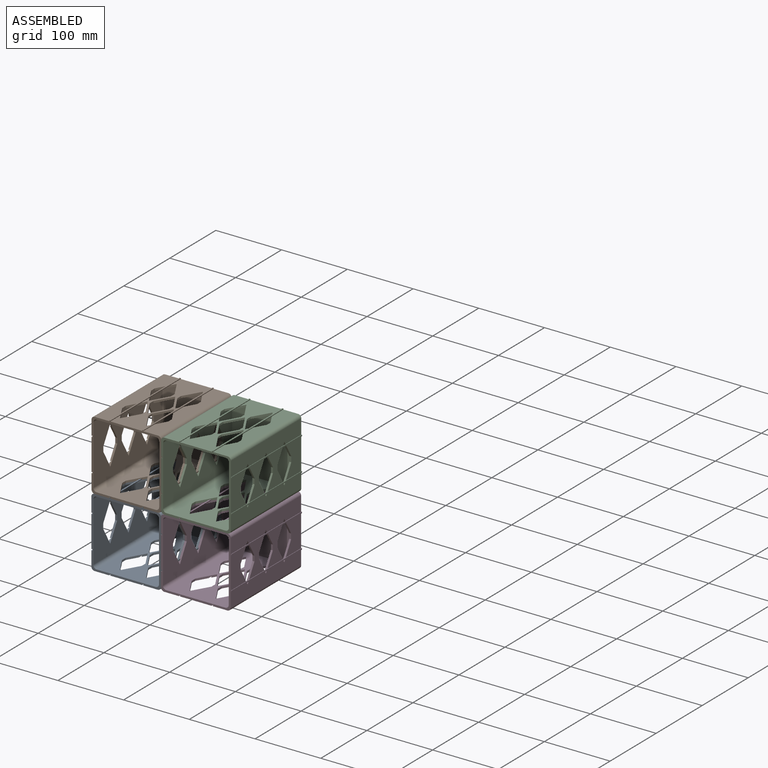
[diagram: assembled view]
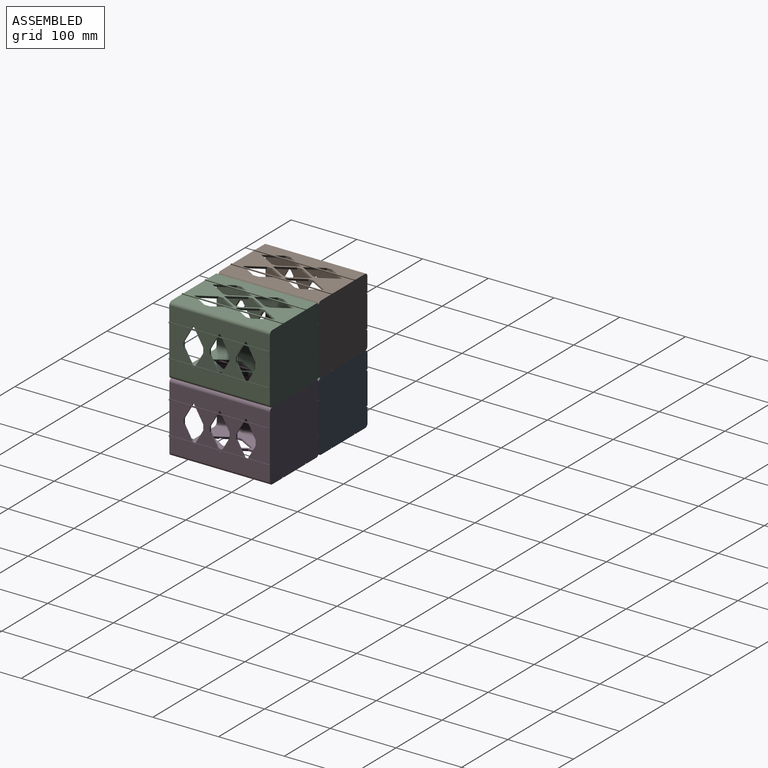
[diagram: assembled view, second angle]
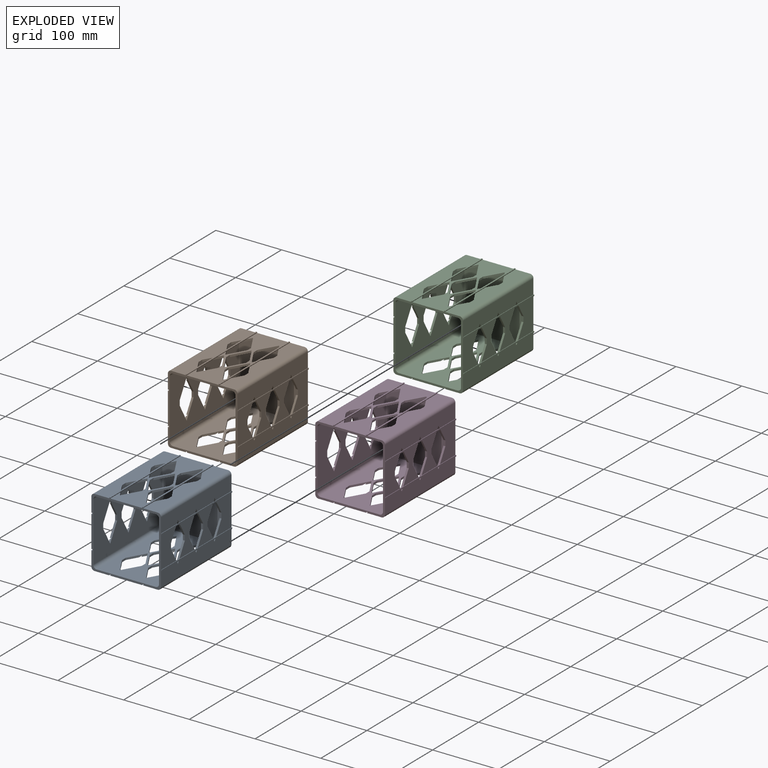
[diagram: exploded view]
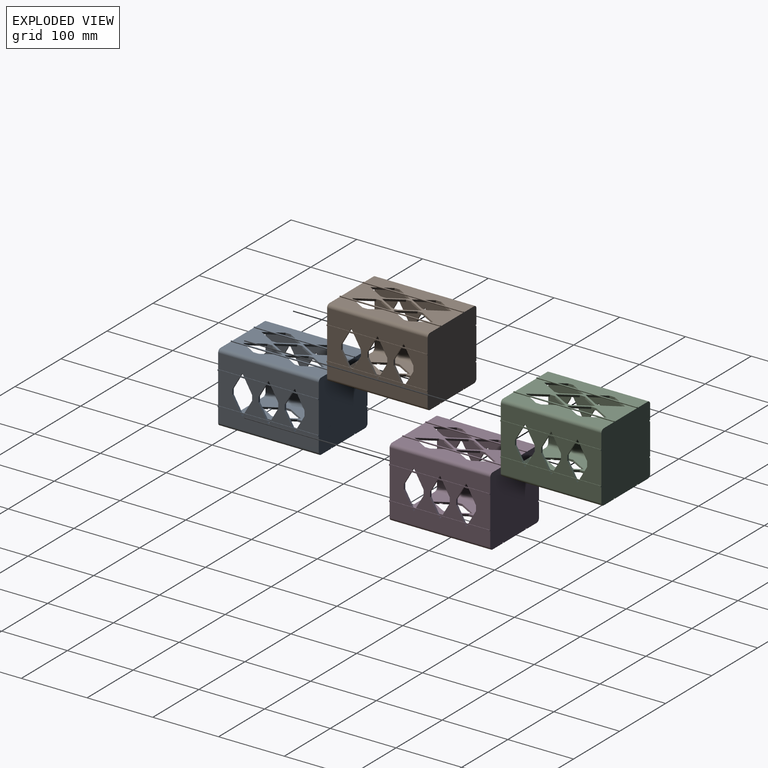
[diagram: exploded view, second angle]
ASSEMBLY  parts=4 mates=3
PART A: 193 faces, bbox 107.3x153x107.3 mm
  f0: plane 48.84x33.44mm, normal (1,0,0), area 1298.4mm2, adj f7,f102,f103,f104,f184,f191
  f1: plane 48.84x33.4mm, normal (1,0,0), area 961.1mm2, adj f96,f97,f98,f99,f100,f101,f184,f191
  f2: plane 48.84x33.4mm, normal (1,0,0), area 961.1mm2, adj f93,f94,f95,f105,f106,f110,f184,f191
  f3: plane 48.84x33.44mm, normal (1,0,0), area 1298.4mm2, adj f8,f107,f108,f109,f184,f191
  f4: plane 153x22.42mm, normal (1,0,0), area 3396.7mm2, adj f7,f8,f95,f96,f101,f102,f109,f110
  f5: plane 153x22.42mm, normal (0,0,1), area 2978.1mm2, adj f7,f8,f39,f40,f41,f56,f57,f58
  f6: plane 153x48.84mm, normal (0,0,1), area 3471.1mm2, adj f7,f8,f30,f31,f32,f33,f34,f35
  f7: plane 107.3x107.3mm, normal (0,-1,0), area 1231.8mm2, adj f0,f4,f5,f6,f9,f10,f15,f16
  f8: plane 107.3x107.3mm, normal (0,1,0), area 11210.4mm2, adj f3,f4,f5,f6,f9,f10,f15,f19
  f9: plane 153x48.42mm, normal (0,0,-1), area 3444.4mm2, adj f7,f8,f11,f12,f13,f14,f65,f66
  f10: plane 153x22.21mm, normal (0,0,-1), area 2962.8mm2, adj f7,f8,f11,f12,f13,f14,f74,f89
  f11: plane 25.98x15mm, normal (-0.87,0.5,0), area 83.8mm2, adj f9,f10,f62,f73,f74,f153,f154,f155
  f12: plane 25.98x15mm, normal (-0.87,-0.5,0), area 83.8mm2, adj f9,f10,f62,f71,f74,f168,f169,f170
  f13: plane 25.98x15mm, normal (-0.87,0.5,0), area 83.8mm2, adj f9,f10,f62,f88,f89,f156,f157,f158
  f14: plane 25.98x15mm, normal (-0.87,-0.5,0), area 83.8mm2, adj f9,f10,f62,f89,f90,f153,f154,f155
  f15: plane 153x22.21mm, normal (-1,0,0), area 3367.6mm2, adj f7,f8,f113,f116,f117,f120,f122,f123
  f16: plane 48.42x33.32mm, normal (-1,0,0), area 1284.4mm2, adj f7,f23,f119,f120,f143,f144
  f17: plane 48.42x33.15mm, normal (-1,0,0), area 947.1mm2, adj f21,f22,f115,f116,f117,f118,f148,f150
  f18: plane 48.42x33.15mm, normal (-1,0,0), area 947.1mm2, adj f20,f25,f113,f114,f121,f122,f129,f140
  f19: plane 48.42x33.32mm, normal (-1,0,0), area 1284.4mm2, adj f8,f24,f123,f124,f133,f137
  f20: plane 25.98x15mm, normal (0,-0.87,0.5), area 86.4mm2, adj f18,f21,f111,f112,f114,f129,f130,f131
  f21: plane 25.98x15mm, normal (0,0.87,0.5), area 86.4mm2, adj f17,f20,f111,f112,f115,f147,f148,f149
  f22: plane 25.98x15mm, normal (0,-0.87,0.5), area 86.4mm2, adj f17,f23,f111,f112,f118,f147,f148,f149
  f23: plane 25.98x15mm, normal (0,0.87,0.5), area 86.4mm2, adj f16,f22,f111,f112,f119,f144,f145,f146
  f24: plane 25.98x15mm, normal (0,-0.87,0.5), area 86.4mm2, adj f19,f25,f111,f112,f124,f132,f133,f134
  f25: plane 25.98x15mm, normal (0,0.87,0.5), area 86.4mm2, adj f18,f24,f111,f112,f121,f129,f130,f131
  f26: plane 153x22.42mm, normal (0,0,1), area 2978.1mm2, adj f7,f8,f44,f45,f46,f51,f52,f53
  f27: plane 150x90mm, normal (0,0,-1), area 8397.1mm2, adj f7,f28,f29,f30,f31,f32,f33,f34
  f28: cylinder r=5mm len=150mm, axis (0,1,0), area 1178.1mm2, adj f7,f27,f60,f112
  f29: cylinder r=5mm len=150mm, axis (0,1,0), area 1178.1mm2, adj f7,f27,f60,f92
  f30: plane 25.98x15mm, normal (0.87,-0.5,0), area 90mm2, adj f6,f27,f31,f35
  f31: plane 8.04x3mm, normal (1,0,0), area 24.1mm2, adj f6,f27,f30,f32
  f32: plane 25.98x15mm, normal (0.87,0.5,0), area 90mm2, adj f6,f27,f31,f33
  f33: plane 25.98x15mm, normal (-0.87,0.5,0), area 90mm2, adj f6,f27,f32,f34
  f34: plane 8.04x3mm, normal (-1,0,0), area 24.1mm2, adj f6,f27,f33,f35
  f35: plane 25.98x15mm, normal (-0.87,-0.5,0), area 90mm2, adj f6,f27,f30,f34
  f36: plane 25.98x15mm, normal (0.87,-0.5,0), area 90mm2, adj f6,f27,f37,f41
  f37: plane 8.04x3mm, normal (1,0,0), area 24.1mm2, adj f6,f27,f36,f38
  f38: plane 25.98x15mm, normal (0.87,0.5,0), area 90mm2, adj f6,f27,f37,f39
  f39: plane 25.98x15mm, normal (-0.87,0.5,0), area 90mm2, adj f5,f6,f27,f38,f40,f177
  f40: plane 8.04x3mm, normal (-1,0,0), area 24.1mm2, adj f5,f27,f39,f41
  f41: plane 25.98x15mm, normal (-0.87,-0.5,0), area 90mm2, adj f5,f6,f27,f36,f40,f177
  f42: plane 8.04x3mm, normal (-1,0,0), area 24.1mm2, adj f6,f27,f43,f47
  f43: plane 25.98x15mm, normal (-0.87,-0.5,0), area 90mm2, adj f6,f27,f42,f44
  f44: plane 25.98x15mm, normal (0.87,-0.5,0), area 90mm2, adj f6,f26,f27,f43,f45,f174
  f45: plane 8.04x3mm, normal (1,0,0), area 24.1mm2, adj f26,f27,f44,f46
  f46: plane 25.98x15mm, normal (0.87,0.5,0), area 90mm2, adj f6,f26,f27,f45,f47,f174
  f47: plane 25.98x15mm, normal (-0.87,0.5,0), area 90mm2, adj f6,f27,f42,f46
  f48: plane 25.98x15mm, normal (-0.87,0.5,0), area 90mm2, adj f6,f27,f49,f53
  f49: plane 8.04x3mm, normal (-1,0,0), area 24.1mm2, adj f6,f27,f48,f50
  f50: plane 25.98x15mm, normal (-0.87,-0.5,0), area 90mm2, adj f6,f27,f49,f51
  f51: plane 25.98x15mm, normal (0.87,-0.5,0), area 90mm2, adj f6,f26,f27,f50,f52,f171
  f52: plane 8.04x3mm, normal (1,0,0), area 24.1mm2, adj f26,f27,f51,f53
  f53: plane 25.98x15mm, normal (0.87,0.5,0), area 90mm2, adj f6,f26,f27,f48,f52,f171
  f54: plane 8.04x3mm, normal (1,0,0), area 24.1mm2, adj f6,f27,f55,f59
  f55: plane 25.98x15mm, normal (0.87,0.5,0), area 90mm2, adj f6,f27,f54,f56
  f56: plane 25.98x15mm, normal (-0.87,0.5,0), area 90mm2, adj f5,f6,f27,f55,f57,f176
  f57: plane 8.04x3mm, normal (-1,0,0), area 24.1mm2, adj f5,f27,f56,f58
  f58: plane 25.98x15mm, normal (-0.87,-0.5,0), area 90mm2, adj f5,f6,f27,f57,f59,f176
  f59: plane 25.98x15mm, normal (0.87,-0.5,0), area 90mm2, adj f6,f27,f54,f58
  f60: plane 100x100mm, normal (0,-1,0), area 9978.5mm2, adj f27,f28,f29,f62,f63,f64,f92,f112
  f61: plane 153x22.21mm, normal (0,0,-1), area 2962.8mm2, adj f7,f8,f77,f78,f79,f84,f85,f86
  f62: plane 150x90mm, normal (0,0,1), area 8397.1mm2, adj f7,f11,f12,f13,f14,f60,f63,f64
  f63: cylinder r=5mm len=150mm, axis (0,1,0), area 1178.1mm2, adj f7,f60,f62,f92
  f64: cylinder r=5mm len=150mm, axis (0,1,0), area 1178.1mm2, adj f7,f60,f62,f112
  f65: plane 25.98x15mm, normal (0.87,-0.5,0), area 90mm2, adj f9,f62,f66,f70
  f66: plane 8.04x3mm, normal (1,0,0), area 24.1mm2, adj f9,f62,f65,f67
  f67: plane 25.98x15mm, normal (0.87,0.5,0), area 90mm2, adj f9,f62,f66,f68
  f68: plane 25.98x15mm, normal (-0.87,0.5,0), area 90mm2, adj f9,f62,f67,f69
  f69: plane 8.04x3mm, normal (-1,0,0), area 24.1mm2, adj f9,f62,f68,f70
  f70: plane 25.98x15mm, normal (-0.87,-0.5,0), area 90mm2, adj f9,f62,f65,f69
  f71: plane 25.98x15mm, normal (0.87,-0.5,0), area 90mm2, adj f9,f12,f62,f72
  f72: plane 8.04x3mm, normal (1,0,0), area 24.1mm2, adj f9,f62,f71,f73
  f73: plane 25.98x15mm, normal (0.87,0.5,0), area 90mm2, adj f9,f11,f62,f72
  f74: plane 8.04x3mm, normal (-1,0,0), area 24.1mm2, adj f10,f11,f12,f62
  f75: plane 8.04x3mm, normal (-1,0,0), area 24.1mm2, adj f9,f62,f76,f80
  f76: plane 25.98x15mm, normal (-0.87,-0.5,0), area 90mm2, adj f9,f62,f75,f77
  f77: plane 25.98x15mm, normal (0.87,-0.5,0), area 83.8mm2, adj f9,f61,f62,f76,f78,f165,f166,f167
  f78: plane 8.04x3mm, normal (1,0,0), area 24.1mm2, adj f61,f62,f77,f79
  f79: plane 25.98x15mm, normal (0.87,0.5,0), area 83.8mm2, adj f9,f61,f62,f78,f80,f162,f163,f164
  f80: plane 25.98x15mm, normal (-0.87,0.5,0), area 90mm2, adj f9,f62,f75,f79
  f81: plane 25.98x15mm, normal (-0.87,0.5,0), area 90mm2, adj f9,f62,f82,f86
  f82: plane 8.04x3mm, normal (-1,0,0), area 24.1mm2, adj f9,f62,f81,f83
  f83: plane 25.98x15mm, normal (-0.87,-0.5,0), area 90mm2, adj f9,f62,f82,f84
  f84: plane 25.98x15mm, normal (0.87,-0.5,0), area 83.8mm2, adj f9,f61,f62,f83,f85,f162,f163,f164
  f85: plane 8.04x3mm, normal (1,0,0), area 24.1mm2, adj f61,f62,f84,f86
  f86: plane 25.98x15mm, normal (0.87,0.5,0), area 83.8mm2, adj f9,f61,f62,f81,f85,f159,f160,f161
  f87: plane 8.04x3mm, normal (1,0,0), area 24.1mm2, adj f9,f62,f88,f90
  f88: plane 25.98x15mm, normal (0.87,0.5,0), area 90mm2, adj f9,f13,f62,f87
  f89: plane 8.04x3mm, normal (-1,0,0), area 24.1mm2, adj f10,f13,f14,f62
  f90: plane 25.98x15mm, normal (0.87,-0.5,0), area 90mm2, adj f9,f14,f62,f87
  f91: plane 153x22.42mm, normal (1,0,0), area 3396.7mm2, adj f7,f8,f93,f98,f99,f104,f106,f107
  f92: plane 150x90mm, normal (-1,0,0), area 10438.3mm2, adj f7,f29,f60,f63,f93,f94,f95,f96
  f93: plane 25.98x15mm, normal (0,-0.87,-0.5), area 90mm2, adj f2,f91,f92,f94,f98,f181
  f94: plane 8.04x3mm, normal (0,-1,0), area 24.1mm2, adj f2,f92,f93,f95
  f95: plane 25.98x15mm, normal (0,-0.87,0.5), area 90mm2, adj f2,f4,f92,f94,f96,f187
  f96: plane 25.98x15mm, normal (0,0.87,0.5), area 90mm2, adj f1,f4,f92,f95,f97,f187
  f97: plane 8.04x3mm, normal (0,1,0), area 24.1mm2, adj f1,f92,f96,f98
  f98: plane 25.98x15mm, normal (0,0.87,-0.5), area 90mm2, adj f1,f91,f92,f93,f97,f181
  f99: plane 25.98x15mm, normal (0,-0.87,-0.5), area 90mm2, adj f1,f91,f92,f100,f104,f183
  f100: plane 8.04x3mm, normal (0,-1,0), area 24.1mm2, adj f1,f92,f99,f101
  f101: plane 25.98x15mm, normal (0,-0.87,0.5), area 90mm2, adj f1,f4,f92,f100,f102,f189
  f102: plane 25.98x15mm, normal (0,0.87,0.5), area 90mm2, adj f0,f4,f92,f101,f103,f189
  f103: plane 8.04x3mm, normal (0,1,0), area 24.1mm2, adj f0,f92,f102,f104
  f104: plane 25.98x15mm, normal (0,0.87,-0.5), area 90mm2, adj f0,f91,f92,f99,f103,f183
  f105: plane 8.04x3mm, normal (0,1,0), area 24.1mm2, adj f2,f92,f106,f110
  f106: plane 25.98x15mm, normal (0,0.87,-0.5), area 90mm2, adj f2,f91,f92,f105,f107,f182
  f107: plane 25.98x15mm, normal (0,-0.87,-0.5), area 90mm2, adj f3,f91,f92,f106,f108,f182
  f108: plane 8.04x3mm, normal (0,-1,0), area 24.1mm2, adj f3,f92,f107,f109
  f109: plane 25.98x15mm, normal (0,-0.87,0.5), area 90mm2, adj f3,f4,f92,f108,f110,f188
  f110: plane 25.98x15mm, normal (0,0.87,0.5), area 90mm2, adj f2,f4,f92,f105,f109,f188
  f111: plane 153x22.21mm, normal (-1,0,0), area 3367.6mm2, adj f7,f8,f20,f21,f22,f23,f24,f25
  f112: plane 150x90mm, normal (1,0,0), area 10438.3mm2, adj f7,f20,f21,f22,f23,f24,f25,f28
  f113: plane 25.98x15mm, normal (0,-0.87,-0.5), area 86.4mm2, adj f15,f18,f112,f114,f116,f138,f139,f140
  f114: plane 8.04x3mm, normal (0,-1,0), area 24.1mm2, adj f18,f20,f112,f113
  f115: plane 8.04x3mm, normal (0,1,0), area 24.1mm2, adj f17,f21,f112,f116
  f116: plane 25.98x15mm, normal (0,0.87,-0.5), area 86.4mm2, adj f15,f17,f112,f113,f115,f150,f151,f152
  f117: plane 25.98x15mm, normal (0,-0.87,-0.5), area 86.4mm2, adj f15,f17,f112,f118,f120,f150,f151,f152
  f118: plane 8.04x3mm, normal (0,-1,0), area 24.1mm2, adj f17,f22,f112,f117
  f119: plane 8.04x3mm, normal (0,1,0), area 24.1mm2, adj f16,f23,f112,f120
  f120: plane 25.98x15mm, normal (0,0.87,-0.5), area 86.4mm2, adj f15,f16,f112,f117,f119,f141,f142,f143
  f121: plane 8.04x3mm, normal (0,1,0), area 24.1mm2, adj f18,f25,f112,f122
  f122: plane 25.98x15mm, normal (0,0.87,-0.5), area 86.4mm2, adj f15,f18,f112,f121,f123,f138,f139,f140
  f123: plane 25.98x15mm, normal (0,-0.87,-0.5), area 86.4mm2, adj f15,f19,f112,f122,f124,f135,f136,f137
  f124: plane 8.04x3mm, normal (0,-1,0), area 24.1mm2, adj f19,f24,f112,f123
  f125: cylinder r=5mm len=153mm, axis (0,1,0), area 1201.7mm2, adj f5,f7,f8,f91
  f126: cylinder r=5mm len=153mm, axis (0,1,0), area 1201.7mm2, adj f4,f7,f8,f10
  f127: cylinder r=5mm len=153mm, axis (0,1,0), area 1201.7mm2, adj f7,f8,f61,f111
  f128: cylinder r=5mm len=153mm, axis (0,1,0), area 1201.7mm2, adj f7,f8,f15,f26
  f129: plane 33.15x1.5mm, normal (0.31,0,-0.95), area 51.8mm2, adj f18,f20,f25,f131
  f130: plane 35.54x1.5mm, normal (0.31,0,0.95), area 55.6mm2, adj f20,f25,f111,f131
  f131: plane 35.54x2.55mm, normal (-1,0,0), area 86.9mm2, adj f20,f25,f129,f130
  f132: plane 34.51x1.5mm, normal (0.31,0,0.95), area 54.2mm2, adj f8,f24,f111,f134
  f133: plane 33.32x1.5mm, normal (0.31,0,-0.95), area 52.3mm2, adj f8,f19,f24,f134
  f134: plane 34.51x2.55mm, normal (-1,0,0), area 86.2mm2, adj f8,f24,f132,f133
  f135: plane 34.51x1.5mm, normal (0.31,0,-0.95), area 54.2mm2, adj f8,f15,f123,f136
  f136: plane 34.51x2.55mm, normal (-1,0,0), area 86.2mm2, adj f8,f123,f135,f137
  f137: plane 33.32x1.5mm, normal (0.31,0,0.95), area 52.3mm2, adj f8,f19,f123,f136
  f138: plane 35.54x1.5mm, normal (0.31,0,-0.95), area 55.6mm2, adj f15,f113,f122,f139
  f139: plane 35.54x2.55mm, normal (-1,0,0), area 86.9mm2, adj f113,f122,f138,f140
  f140: plane 33.15x1.5mm, normal (0.31,0,0.95), area 51.8mm2, adj f18,f113,f122,f139
  f141: plane 34.51x1.5mm, normal (0.31,0,-0.95), area 54.2mm2, adj f7,f15,f120,f142
  f142: plane 34.51x2.55mm, normal (-1,0,0), area 86.2mm2, adj f7,f120,f141,f143
  f143: plane 33.32x1.5mm, normal (0.31,0,0.95), area 52.3mm2, adj f7,f16,f120,f142
  f144: plane 33.32x1.5mm, normal (0.31,0,-0.95), area 52.3mm2, adj f7,f16,f23,f146
  f145: plane 34.51x1.5mm, normal (0.31,0,0.95), area 54.2mm2, adj f7,f23,f111,f146
  f146: plane 34.51x2.55mm, normal (-1,0,0), area 86.2mm2, adj f7,f23,f144,f145
  f147: plane 35.54x2.55mm, normal (-1,0,0), area 86.9mm2, adj f21,f22,f148,f149
  f148: plane 33.15x1.5mm, normal (0.31,0,-0.95), area 51.8mm2, adj f17,f21,f22,f147
  f149: plane 35.54x1.5mm, normal (0.31,0,0.95), area 55.6mm2, adj f21,f22,f111,f147
  f150: plane 33.15x1.5mm, normal (0.31,0,0.95), area 51.8mm2, adj f17,f116,f117,f151
  f151: plane 35.54x2.55mm, normal (-1,0,0), area 86.9mm2, adj f116,f117,f150,f152
  f152: plane 35.54x1.5mm, normal (0.31,0,-0.95), area 55.6mm2, adj f15,f116,f117,f151
  f153: plane 25.02x2.55mm, normal (0,0,-1), area 52.6mm2, adj f11,f14,f154,f155
  f154: plane 25.02x1.5mm, normal (-0.95,0,0.31), area 38.1mm2, adj f10,f11,f14,f153
  f155: plane 17.87x1.5mm, normal (0.95,0,0.31), area 26.9mm2, adj f9,f11,f14,f153
  f156: plane 26.01x2.55mm, normal (0,0,-1), area 60.7mm2, adj f7,f13,f157,f158
  f157: plane 26.01x1.5mm, normal (-0.95,0,0.31), area 40.4mm2, adj f7,f10,f13,f156
  f158: plane 22.44x1.5mm, normal (0.95,0,0.31), area 34.7mm2, adj f7,f9,f13,f156
  f159: plane 26.01x1.5mm, normal (0.95,0,0.31), area 40.4mm2, adj f7,f61,f86,f160
  f160: plane 26.01x2.55mm, normal (0,0,-1), area 60.7mm2, adj f7,f86,f159,f161
  f161: plane 22.44x1.5mm, normal (-0.95,0,0.31), area 34.7mm2, adj f7,f9,f86,f160
  f162: plane 25.02x1.5mm, normal (0.95,0,0.31), area 38.1mm2, adj f61,f79,f84,f163
  f163: plane 25.02x2.55mm, normal (0,0,-1), area 52.6mm2, adj f79,f84,f162,f164
  f164: plane 17.87x1.5mm, normal (-0.95,0,0.31), area 26.9mm2, adj f9,f79,f84,f163
  f165: plane 22.44x1.5mm, normal (-0.95,0,0.31), area 34.7mm2, adj f8,f9,f77,f166
  f166: plane 26.01x2.55mm, normal (0,0,-1), area 60.7mm2, adj f8,f77,f165,f167
  f167: plane 26.01x1.5mm, normal (0.95,0,0.31), area 40.4mm2, adj f8,f61,f77,f166
  f168: plane 22.44x1.5mm, normal (0.95,0,0.31), area 34.7mm2, adj f8,f9,f12,f170
  f169: plane 26.01x1.5mm, normal (-0.95,0,0.31), area 40.4mm2, adj f8,f10,f12,f170
  f170: plane 26.01x2.55mm, normal (0,0,-1), area 60.7mm2, adj f8,f12,f168,f169
  f171: plane 44.4x1.16mm, normal (0,0,-1), area 49mm2, adj f51,f53,f172,f175
  f172: plane 153x1.3mm, normal (0.95,0,-0.31), area 209.1mm2, adj f6,f7,f8,f171,f173,f174
  f173: plane 153x2mm, normal (0,0,1), area 306.2mm2, adj f7,f8,f172,f175
  f174: plane 44.4x1.16mm, normal (0,0,-1), area 49mm2, adj f44,f46,f172,f175
  f175: plane 153x1.3mm, normal (-0.95,0,-0.31), area 209.1mm2, adj f7,f8,f26,f171,f173,f174
  f176: plane 44.4x1.16mm, normal (0,0,-1), area 49mm2, adj f56,f58,f178,f179
  f177: plane 44.4x1.16mm, normal (0,0,-1), area 49mm2, adj f39,f41,f178,f179
  f178: plane 153x1.3mm, normal (0.95,0,-0.31), area 209.1mm2, adj f5,f7,f8,f176,f177,f180
  f179: plane 153x1.3mm, normal (-0.95,0,-0.31), area 209.1mm2, adj f6,f7,f8,f176,f177,f180
  f180: plane 153x2mm, normal (0,0,1), area 306.2mm2, adj f7,f8,f178,f179
  f181: plane 6.44x1.16mm, normal (-1,0,0), area 6.7mm2, adj f93,f98,f184,f186
  f182: plane 6.44x1.16mm, normal (-1,0,0), area 6.7mm2, adj f106,f107,f184,f186
  f183: plane 6.44x1.16mm, normal (-1,0,0), area 6.7mm2, adj f99,f104,f184,f186
  f184: plane 153x1.3mm, normal (-0.31,0,-0.95), area 209.1mm2, adj f0,f1,f2,f3,f7,f8,f181,f182
  f185: plane 153x2mm, normal (1,0,0), area 306.2mm2, adj f7,f8,f184,f186
  f186: plane 153x1.3mm, normal (-0.31,0,0.95), area 209.1mm2, adj f7,f8,f91,f181,f182,f183,f185
  f187: plane 6.44x1.16mm, normal (-1,0,0), area 6.7mm2, adj f95,f96,f190,f191
  f188: plane 6.44x1.16mm, normal (-1,0,0), area 6.7mm2, adj f109,f110,f190,f191
  f189: plane 6.44x1.16mm, normal (-1,0,0), area 6.7mm2, adj f101,f102,f190,f191
  f190: plane 153x1.3mm, normal (-0.31,0,-0.95), area 209.1mm2, adj f4,f7,f8,f187,f188,f189,f192
  f191: plane 153x1.3mm, normal (-0.31,0,0.95), area 209.1mm2, adj f0,f1,f2,f3,f7,f8,f187,f188
  f192: plane 153x2mm, normal (1,0,0), area 306.2mm2, adj f7,f8,f190,f191
PART B: same geometry as A
PART C: same geometry as A
PART D: same geometry as A
PLACE A t=(-93,34.24,15.94)mm fixed
PLACE B t=(-92.79,34.24,121.94)mm
PLACE C t=(13.21,34.24,121.73)mm
PLACE D t=(13,34.24,15.73)mm
MATE slider A.f8 <-> B.f8  axis (0,1,0) through (-118.58,34.24,68.94)mm
MATE slider C.f8 <-> D.f8  axis (0,1,0) through (-12.58,34.24,68.73)mm
MATE slider A.f8 <-> D.f8  axis (0,1,0) through (-40,34.24,41.52)mm
